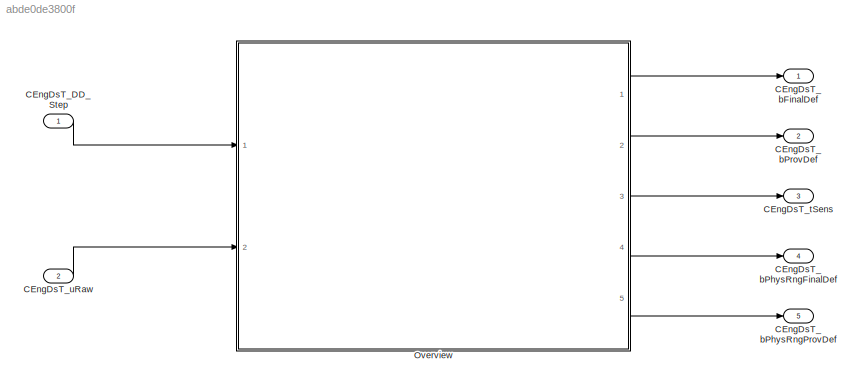
MODEL slx_abde0de3800f
KIND model
CONFIG AbsTol = auto
CONFIG EnableMultiTasking = off
CONFIG FixedStep = 0.001
CONFIG MaxStep = auto
CONFIG MinStep = auto
CONFIG RelTol = 1e-3
CONFIG SampleTimeConstraint = Unconstrained
CONFIG SolverName = FixedStepDiscrete
CONFIG StartTime = 0.0
CONFIG StopTime = Inf
WORKSPACE source: mxarray member
WORKSPACE CEngDsT_DD_DT = 10
BLOCK [Inport] CEngDsT_DD_Step
  OutputFunctionCall = on
BLOCK [Outport] CEngDsT_bFinalDef
  Description = Status Sensor of the coolant temperature finally defect
  OutDataTypeStr = boolean
  OutMax = 1
  OutMin = 0
  PortDimensions = [1 1]
BLOCK [Outport] CEngDsT_bPhysRngFinalDef
  Description = Status Sensor of the CEngDsT physical Signal range check finally defect
  OutDataTypeStr = boolean
  OutMax = 1
  OutMin = 0
  Port = 4
  PortDimensions = [1 1]
BLOCK [Outport] CEngDsT_bPhysRngProvDef
  Description = Status Sensor of the CEngDsT physical Signal range check temporary defect
  OutDataTypeStr = boolean
  OutMax = 1
  OutMin = 0
  Port = 5
  PortDimensions = [1 1]
BLOCK [Outport] CEngDsT_bProvDef
  Description = Status Sensor of the coolant temperature temporary defect
  OutDataTypeStr = boolean
  OutMax = 1
  OutMin = 0
  Port = 2
  PortDimensions = [1 1]
BLOCK [Outport] CEngDsT_tSens
  Description = Sensed engine coolant temperature
  OutDataTypeStr = Temp_C
  OutMax = 200
  OutMin = -200
  Port = 3
  PortDimensions = [1 1]
  Unit = deg
BLOCK [Inport] CEngDsT_uRaw
  Description = Raw ADC value of downstream engine coolant temperature sensor signal
  OutDataTypeStr = Volt_mV2
  OutMax = 5000
  OutMin = 0
  Port = 2
  PortDimensions = [1 1]
  Unit = mv
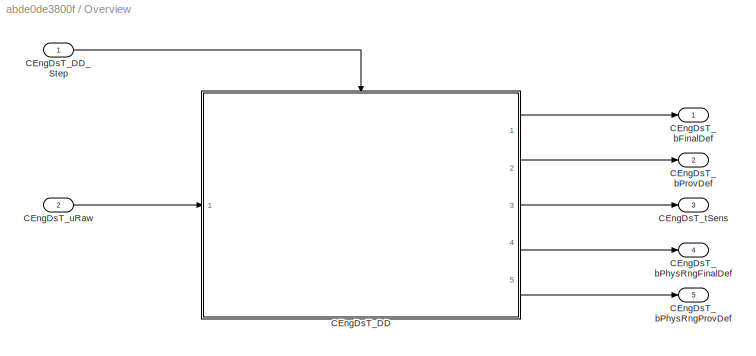
BLOCK [SubSystem] Overview
  Ports = [2, 5]
  RequestExecContextInheritance = off
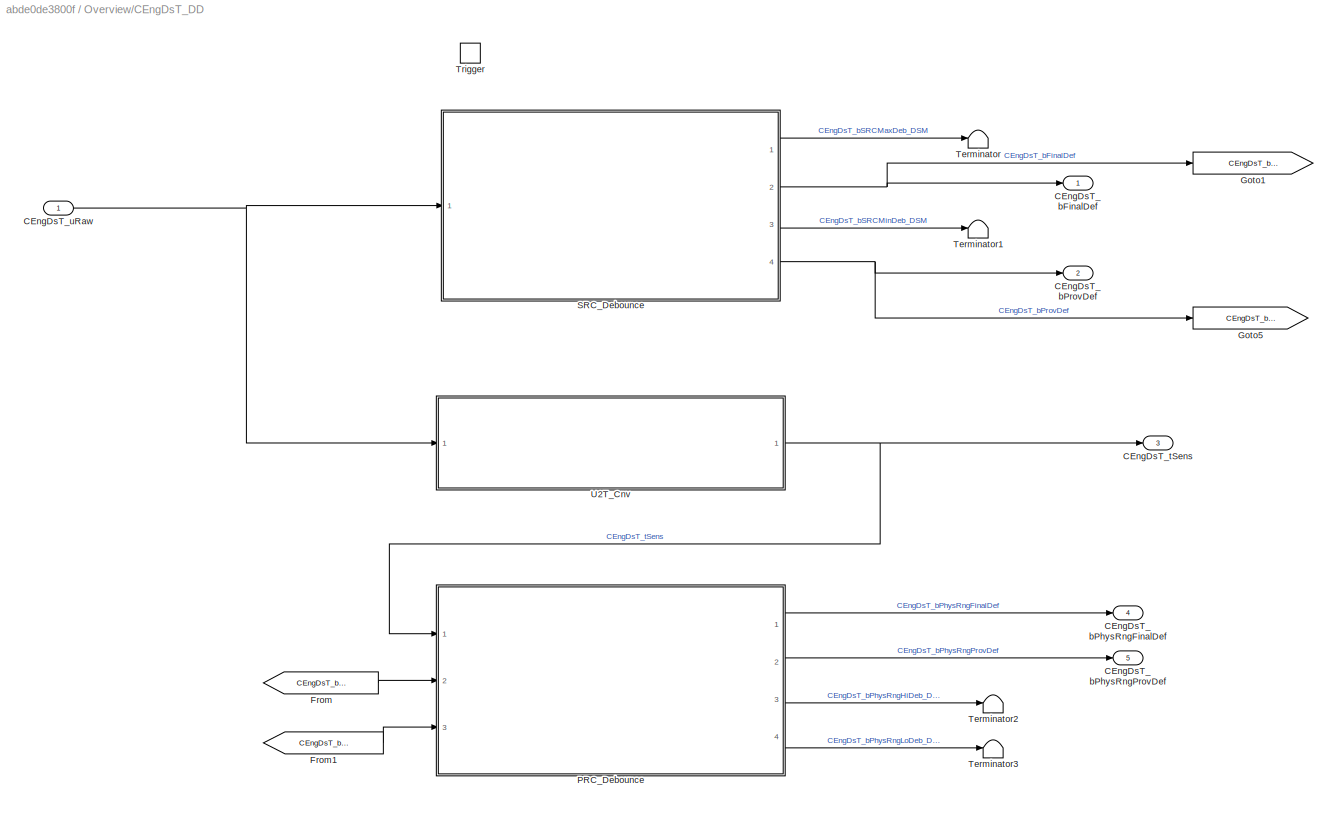
BLOCK [SubSystem] Overview/CEngDsT_DD
  Ports = [1, 5, 0, 1]
  RTWFcnName = CEngDsT_DDfun
  RTWFileName = CEngDsT_DDfun
  RequestExecContextInheritance = off
BLOCK [Outport] Overview/CEngDsT_DD/CEngDsT_bFinalDef
  VectorParamsAs1DForOutWhenUnconnected = off
BLOCK [Outport] Overview/CEngDsT_DD/CEngDsT_bPhysRngFinalDef
  Port = 4
  VectorParamsAs1DForOutWhenUnconnected = off
BLOCK [Outport] Overview/CEngDsT_DD/CEngDsT_bPhysRngProvDef
  Port = 5
  VectorParamsAs1DForOutWhenUnconnected = off
BLOCK [Outport] Overview/CEngDsT_DD/CEngDsT_bProvDef
  Port = 2
  VectorParamsAs1DForOutWhenUnconnected = off
BLOCK [Outport] Overview/CEngDsT_DD/CEngDsT_tSens
  Port = 3
  Tag = deg
  VectorParamsAs1DForOutWhenUnconnected = off
BLOCK [Inport] Overview/CEngDsT_DD/CEngDsT_uRaw
  Tag = mv
BLOCK [From] Overview/CEngDsT_DD/From
  GotoTag = CEngDsT_bProvDef
BLOCK [From] Overview/CEngDsT_DD/From1
  GotoTag = CEngDsT_bFinalDef
BLOCK [Goto] Overview/CEngDsT_DD/Goto1
  GotoTag = CEngDsT_bFinalDef
BLOCK [Goto] Overview/CEngDsT_DD/Goto5
  GotoTag = CEngDsT_bProvDef
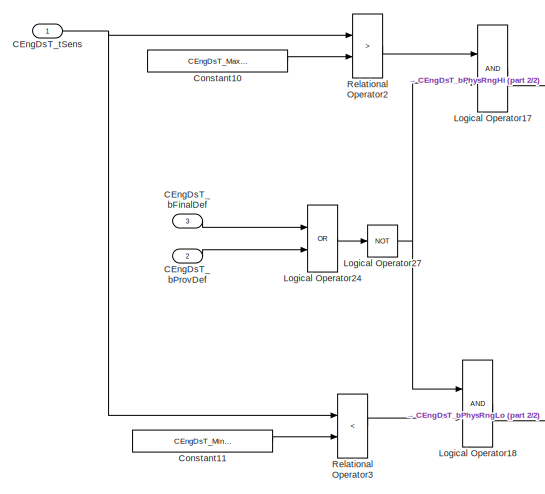
[diagram: Overview/CEngDsT_DD/PRC_Debounce - part 1/2, middle left region]
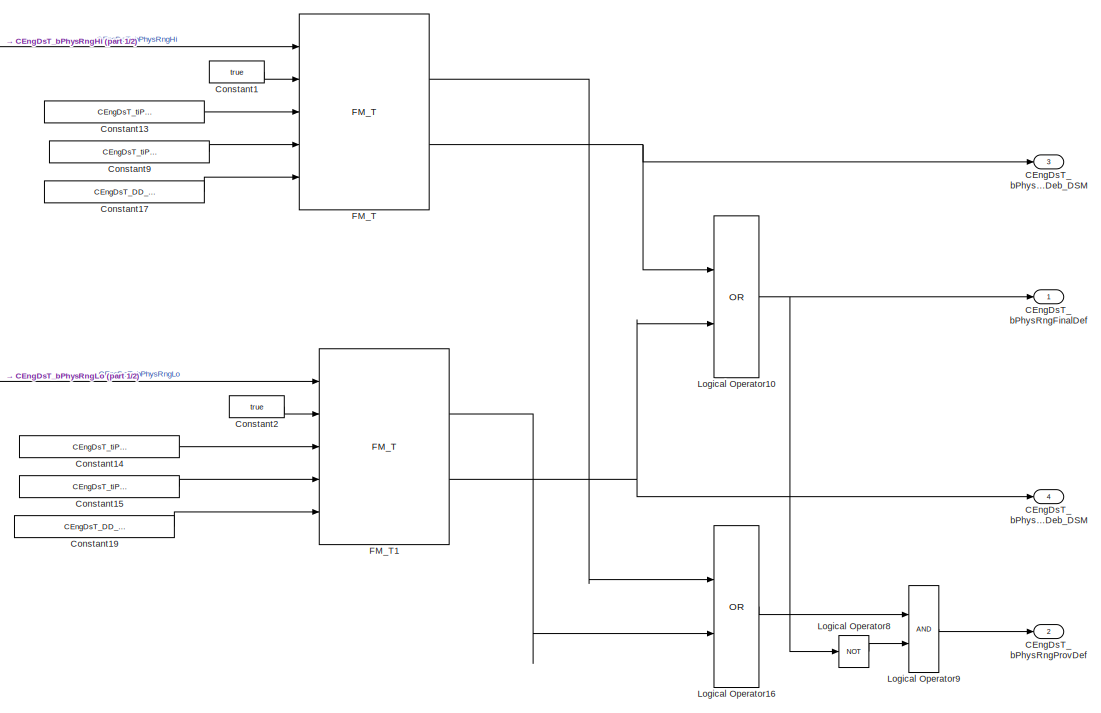
[diagram: Overview/CEngDsT_DD/PRC_Debounce - part 2/2, center side, full height]
BLOCK [SubSystem] Overview/CEngDsT_DD/PRC_Debounce
  Ports = [3, 4]
  RequestExecContextInheritance = off
BLOCK [Inport] Overview/CEngDsT_DD/PRC_Debounce/CEngDsT_bFinalDef
  Port = 3
BLOCK [Outport] Overview/CEngDsT_DD/PRC_Debounce/CEngDsT_bPhysRngFinalDef
  Tag = -
  VectorParamsAs1DForOutWhenUnconnected = off
BLOCK [Outport] Overview/CEngDsT_DD/PRC_Debounce/CEngDsT_bPhysRngHiDeb_DSM
  Port = 3
  Tag = -
  VectorParamsAs1DForOutWhenUnconnected = off
BLOCK [Outport] Overview/CEngDsT_DD/PRC_Debounce/CEngDsT_bPhysRngLoDeb_DSM
  Port = 4
  Tag = -
  VectorParamsAs1DForOutWhenUnconnected = off
BLOCK [Outport] Overview/CEngDsT_DD/PRC_Debounce/CEngDsT_bPhysRngProvDef
  Port = 2
  Tag = -
  VectorParamsAs1DForOutWhenUnconnected = off
BLOCK [Inport] Overview/CEngDsT_DD/PRC_Debounce/CEngDsT_bProvDef
  Port = 2
BLOCK [Inport] Overview/CEngDsT_DD/PRC_Debounce/CEngDsT_tSens
BLOCK [Constant] Overview/CEngDsT_DD/PRC_Debounce/Constant1
  OutDataTypeStr = boolean
  Value = true
BLOCK [Constant] Overview/CEngDsT_DD/PRC_Debounce/Constant10
  Value = CEngDsT_MaxCoolTemp
BLOCK [Constant] Overview/CEngDsT_DD/PRC_Debounce/Constant11
  Value = CEngDsT_MinCoolTemp
BLOCK [Constant] Overview/CEngDsT_DD/PRC_Debounce/Constant13
  Value = CEngDsT_tiPhysRngHiDefDeb_C
BLOCK [Constant] Overview/CEngDsT_DD/PRC_Debounce/Constant14
  Value = CEngDsT_tiPhysRngLoDefDeb_C
BLOCK [Constant] Overview/CEngDsT_DD/PRC_Debounce/Constant15
  Value = CEngDsT_tiPhysRngLoOKDeb_C
BLOCK [Constant] Overview/CEngDsT_DD/PRC_Debounce/Constant17
  OutDataTypeStr = Inherit: Inherit via back propagation
  Value = CEngDsT_DD_DT
BLOCK [Constant] Overview/CEngDsT_DD/PRC_Debounce/Constant19
  OutDataTypeStr = Inherit: Inherit via back propagation
  Value = CEngDsT_DD_DT
BLOCK [Constant] Overview/CEngDsT_DD/PRC_Debounce/Constant2
  OutDataTypeStr = boolean
  Value = true
BLOCK [Constant] Overview/CEngDsT_DD/PRC_Debounce/Constant9
  Value = CEngDsT_tiPhysRngHiOKDeb_C
BLOCK [Reference] Overview/CEngDsT_DD/PRC_Debounce/FM_T  REF=sllib/Fault Manager/FM_T  (lib defined in slx_2b0aa6d284ff)
  AttributesFormatString = %<Fault_ID>
  Ports = [5, 2]
  SourceBlock = sllib/Fault Manager/FM_T
  SourceProductName = sllib
  SourceType = FM_T
BLOCK [Reference] Overview/CEngDsT_DD/PRC_Debounce/FM_T1  REF=sllib/Fault Manager/FM_T  (lib defined in slx_2b0aa6d284ff)
  AttributesFormatString = %<Fault_ID>
  Ports = [5, 2]
  SourceBlock = sllib/Fault Manager/FM_T
  SourceProductName = sllib
  SourceType = FM_T
BLOCK [Logic] Overview/CEngDsT_DD/PRC_Debounce/Logical Operator10
  AllPortsSameDT = off
  Operator = OR
  OutDataTypeStr = boolean
  Ports = [2, 1]
BLOCK [Logic] Overview/CEngDsT_DD/PRC_Debounce/Logical Operator16
  AllPortsSameDT = off
  Operator = OR
  OutDataTypeStr = boolean
  Ports = [2, 1]
BLOCK [Logic] Overview/CEngDsT_DD/PRC_Debounce/Logical Operator17
  AllPortsSameDT = off
  OutDataTypeStr = boolean
  Ports = [2, 1]
BLOCK [Logic] Overview/CEngDsT_DD/PRC_Debounce/Logical Operator18
  AllPortsSameDT = off
  OutDataTypeStr = boolean
  Ports = [2, 1]
BLOCK [Logic] Overview/CEngDsT_DD/PRC_Debounce/Logical Operator24
  Operator = OR
  OutDataTypeStr = boolean
  Ports = [2, 1]
BLOCK [Logic] Overview/CEngDsT_DD/PRC_Debounce/Logical Operator27
  AllPortsSameDT = off
  Operator = NOT
  OutDataTypeStr = boolean
  Ports = [1, 1]
BLOCK [Logic] Overview/CEngDsT_DD/PRC_Debounce/Logical Operator8
  AllPortsSameDT = off
  Operator = NOT
  OutDataTypeStr = boolean
  Ports = [1, 1]
BLOCK [Logic] Overview/CEngDsT_DD/PRC_Debounce/Logical Operator9
  AllPortsSameDT = off
  OutDataTypeStr = boolean
  Ports = [2, 1]
BLOCK [RelationalOperator] Overview/CEngDsT_DD/PRC_Debounce/Relational Operator2
  Operator = >
  OutDataTypeStr = boolean
  Ports = [2, 1]
  RndMeth = Floor
BLOCK [RelationalOperator] Overview/CEngDsT_DD/PRC_Debounce/Relational Operator3
  Operator = <
  OutDataTypeStr = boolean
  Ports = [2, 1]
  RndMeth = Simplest
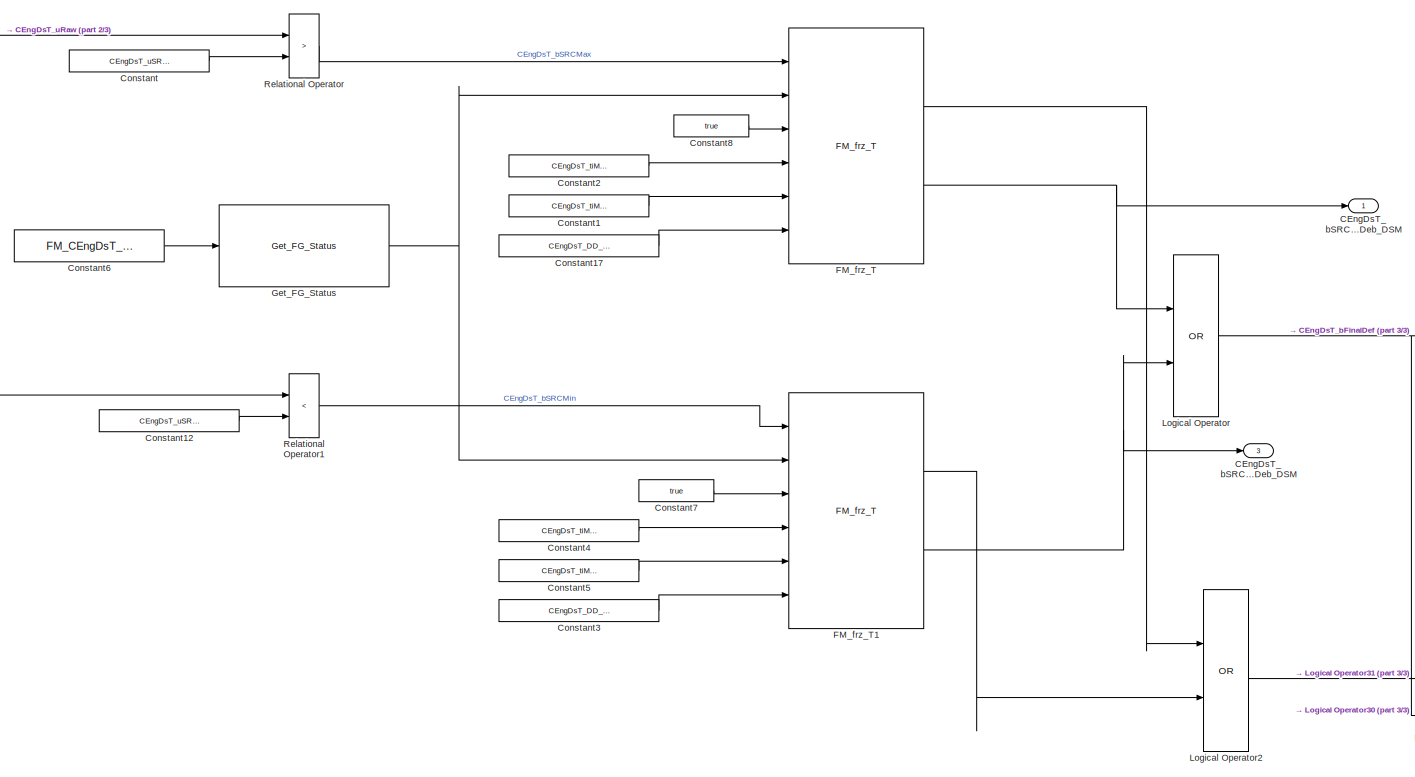
[diagram: Overview/CEngDsT_DD/SRC_Debounce - part 1/3, most of the canvas]
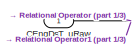
[diagram: Overview/CEngDsT_DD/SRC_Debounce - part 2/3, top left region]
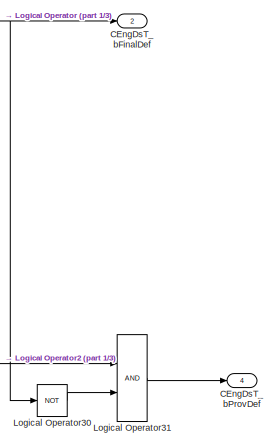
[diagram: Overview/CEngDsT_DD/SRC_Debounce - part 3/3, bottom right region]
BLOCK [SubSystem] Overview/CEngDsT_DD/SRC_Debounce
  Ports = [1, 4]
  RequestExecContextInheritance = off
BLOCK [Outport] Overview/CEngDsT_DD/SRC_Debounce/CEngDsT_bFinalDef
  Port = 2
  Tag = -
  VectorParamsAs1DForOutWhenUnconnected = off
BLOCK [Outport] Overview/CEngDsT_DD/SRC_Debounce/CEngDsT_bProvDef
  Port = 4
  Tag = -
  VectorParamsAs1DForOutWhenUnconnected = off
BLOCK [Outport] Overview/CEngDsT_DD/SRC_Debounce/CEngDsT_bSRCMaxDeb_DSM
  Tag = -
  VectorParamsAs1DForOutWhenUnconnected = off
BLOCK [Outport] Overview/CEngDsT_DD/SRC_Debounce/CEngDsT_bSRCMinDeb_DSM
  Port = 3
  Tag = -
  VectorParamsAs1DForOutWhenUnconnected = off
BLOCK [Inport] Overview/CEngDsT_DD/SRC_Debounce/CEngDsT_uRaw
  Tag = mv
BLOCK [Constant] Overview/CEngDsT_DD/SRC_Debounce/Constant
  Value = CEngDsT_uSRCMax_C
BLOCK [Constant] Overview/CEngDsT_DD/SRC_Debounce/Constant1
  Value = CEngDsT_tiMaxOKDeb_C
BLOCK [Constant] Overview/CEngDsT_DD/SRC_Debounce/Constant12
  Value = CEngDsT_uSRCMin_C
BLOCK [Constant] Overview/CEngDsT_DD/SRC_Debounce/Constant17
  OutDataTypeStr = Inherit: Inherit via back propagation
  Value = CEngDsT_DD_DT
BLOCK [Constant] Overview/CEngDsT_DD/SRC_Debounce/Constant2
  Value = CEngDsT_tiMaxDefDeb_C
BLOCK [Constant] Overview/CEngDsT_DD/SRC_Debounce/Constant3
  OutDataTypeStr = Inherit: Inherit via back propagation
  Value = CEngDsT_DD_DT
BLOCK [Constant] Overview/CEngDsT_DD/SRC_Debounce/Constant4
  Value = CEngDsT_tiMinDefDeb_C
BLOCK [Constant] Overview/CEngDsT_DD/SRC_Debounce/Constant5
  Value = CEngDsT_tiMinOKDeb_C
BLOCK [Constant] Overview/CEngDsT_DD/SRC_Debounce/Constant6
  Value = FM_CEngDsT_SRC_FG_CA
BLOCK [Constant] Overview/CEngDsT_DD/SRC_Debounce/Constant7
  OutDataTypeStr = boolean
  Value = true
BLOCK [Constant] Overview/CEngDsT_DD/SRC_Debounce/Constant8
  OutDataTypeStr = boolean
  Value = true
BLOCK [Reference] Overview/CEngDsT_DD/SRC_Debounce/FM_frz_T  REF=sllib/Fault Manager/FM_frz_T  (lib defined in slx_2b0aa6d284ff)
  AttributesFormatString = %<Fault_ID>
  Ports = [6, 2]
  SourceBlock = sllib/Fault Manager/FM_frz_T
  SourceProductName = sllib
  SourceType = FM_frz_T
BLOCK [Reference] Overview/CEngDsT_DD/SRC_Debounce/FM_frz_T1  REF=sllib/Fault Manager/FM_frz_T  (lib defined in slx_2b0aa6d284ff)
  AttributesFormatString = %<Fault_ID>
  Ports = [6, 2]
  SourceBlock = sllib/Fault Manager/FM_frz_T
  SourceProductName = sllib
  SourceType = FM_frz_T
BLOCK [Reference] Overview/CEngDsT_DD/SRC_Debounce/Get_FG_Status  REF=sllib/Fault Manager/Get_FG_Status  (lib defined in slx_2b0aa6d284ff)
  Ports = [1, 1]
  SourceBlock = sllib/Fault Manager/Get_FG_Status
  SourceProductName = sllib
  SourceType = Get_FG_Status
BLOCK [Logic] Overview/CEngDsT_DD/SRC_Debounce/Logical Operator
  AllPortsSameDT = off
  Operator = OR
  OutDataTypeStr = boolean
  Ports = [2, 1]
BLOCK [Logic] Overview/CEngDsT_DD/SRC_Debounce/Logical Operator2
  AllPortsSameDT = off
  Operator = OR
  OutDataTypeStr = boolean
  Ports = [2, 1]
BLOCK [Logic] Overview/CEngDsT_DD/SRC_Debounce/Logical Operator30
  AllPortsSameDT = off
  Operator = NOT
  OutDataTypeStr = boolean
  Ports = [1, 1]
BLOCK [Logic] Overview/CEngDsT_DD/SRC_Debounce/Logical Operator31
  AllPortsSameDT = off
  OutDataTypeStr = boolean
  Ports = [2, 1]
BLOCK [RelationalOperator] Overview/CEngDsT_DD/SRC_Debounce/Relational Operator
  Operator = >
  OutDataTypeStr = boolean
  Ports = [2, 1]
  RndMeth = Floor
BLOCK [RelationalOperator] Overview/CEngDsT_DD/SRC_Debounce/Relational Operator1
  Operator = <
  OutDataTypeStr = boolean
  Ports = [2, 1]
  RndMeth = Floor
BLOCK [Terminator] Overview/CEngDsT_DD/Terminator
BLOCK [Terminator] Overview/CEngDsT_DD/Terminator1
BLOCK [Terminator] Overview/CEngDsT_DD/Terminator2
BLOCK [Terminator] Overview/CEngDsT_DD/Terminator3
BLOCK [TriggerPort] Overview/CEngDsT_DD/Trigger
  PortDimensions = 1
  Ports = []
  StatesWhenEnabling = held
  TriggerType = function-call
  VariantControl = Variant
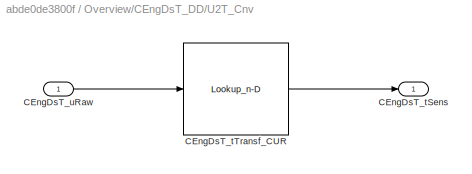
BLOCK [SubSystem] Overview/CEngDsT_DD/U2T_Cnv
  Ports = [1, 1]
  RequestExecContextInheritance = off
BLOCK [Outport] Overview/CEngDsT_DD/U2T_Cnv/CEngDsT_tSens
  Tag = deg
  VectorParamsAs1DForOutWhenUnconnected = off
BLOCK [Lookup_n-D] Overview/CEngDsT_DD/U2T_Cnv/CEngDsT_tTransf_CUR
  BeginIndexSearchUsingPreviousIndexResult = on
  BreakpointsForDimension1 = CEngDsT_tTransf_CURX
  BreakpointsForDimension1DataTypeStr = Inherit: Inherit from 'Breakpoint data'
  BreakpointsForDimension2 = CEngDsT_tTransf_CURX
  DialogController = Simulink.DDGSource
  ExtrapMethod = Clip
  IndexSearchMethod = Linear search
  InputPortMap = u0
  InputSameDT = off
  InternalRulePriority = Speed
  NumberOfTableDimensions = 1
  OutDataTypeStr = Inherit: Inherit from 'Table data'
  Ports = [1, 1]
  RemoveProtectionInput = on
  SaturateOnIntegerOverflow = on
  Table = CEngDsT_tTransf_CUR
  TableDataTypeStr = Inherit: Inherit from 'Table data'
  UseLastTableValue = on
BLOCK [Inport] Overview/CEngDsT_DD/U2T_Cnv/CEngDsT_uRaw
  Tag = mv
BLOCK [Inport] Overview/CEngDsT_DD_Step
BLOCK [Outport] Overview/CEngDsT_bFinalDef
  VectorParamsAs1DForOutWhenUnconnected = off
BLOCK [Outport] Overview/CEngDsT_bPhysRngFinalDef
  Port = 4
  VectorParamsAs1DForOutWhenUnconnected = off
BLOCK [Outport] Overview/CEngDsT_bPhysRngProvDef
  Port = 5
  VectorParamsAs1DForOutWhenUnconnected = off
BLOCK [Outport] Overview/CEngDsT_bProvDef
  Port = 2
  VectorParamsAs1DForOutWhenUnconnected = off
BLOCK [Outport] Overview/CEngDsT_tSens
  Port = 3
  VectorParamsAs1DForOutWhenUnconnected = off
BLOCK [Inport] Overview/CEngDsT_uRaw
  Port = 2
LINE CEngDsT_DD_Step:1 -> Overview:1
LINE CEngDsT_uRaw:1 -> Overview:2
NET Overview/CEngDsT_DD/CEngDsT_uRaw:1 -> Overview/CEngDsT_DD/SRC_Debounce:1, Overview/CEngDsT_DD/U2T_Cnv:1
LINE Overview/CEngDsT_DD/From1:1 -> Overview/CEngDsT_DD/PRC_Debounce:3
LINE Overview/CEngDsT_DD/From:1 -> Overview/CEngDsT_DD/PRC_Debounce:2
LINE Overview/CEngDsT_DD/PRC_Debounce/CEngDsT_bFinalDef:1 -> Overview/CEngDsT_DD/PRC_Debounce/Logical Operator24:1
LINE Overview/CEngDsT_DD/PRC_Debounce/CEngDsT_bProvDef:1 -> Overview/CEngDsT_DD/PRC_Debounce/Logical Operator24:2
NET Overview/CEngDsT_DD/PRC_Debounce/CEngDsT_tSens:1 -> Overview/CEngDsT_DD/PRC_Debounce/Relational Operator2:1, Overview/CEngDsT_DD/PRC_Debounce/Relational Operator3:1
LINE Overview/CEngDsT_DD/PRC_Debounce/Constant10:1 -> Overview/CEngDsT_DD/PRC_Debounce/Relational Operator2:2
LINE Overview/CEngDsT_DD/PRC_Debounce/Constant11:1 -> Overview/CEngDsT_DD/PRC_Debounce/Relational Operator3:2
LINE Overview/CEngDsT_DD/PRC_Debounce/Constant13:1 -> Overview/CEngDsT_DD/PRC_Debounce/FM_T:3
LINE Overview/CEngDsT_DD/PRC_Debounce/Constant14:1 -> Overview/CEngDsT_DD/PRC_Debounce/FM_T1:3
LINE Overview/CEngDsT_DD/PRC_Debounce/Constant15:1 -> Overview/CEngDsT_DD/PRC_Debounce/FM_T1:4
LINE Overview/CEngDsT_DD/PRC_Debounce/Constant17:1 -> Overview/CEngDsT_DD/PRC_Debounce/FM_T:5
LINE Overview/CEngDsT_DD/PRC_Debounce/Constant19:1 -> Overview/CEngDsT_DD/PRC_Debounce/FM_T1:5
LINE Overview/CEngDsT_DD/PRC_Debounce/Constant1:1 -> Overview/CEngDsT_DD/PRC_Debounce/FM_T:2
LINE Overview/CEngDsT_DD/PRC_Debounce/Constant2:1 -> Overview/CEngDsT_DD/PRC_Debounce/FM_T1:2
LINE Overview/CEngDsT_DD/PRC_Debounce/Constant9:1 -> Overview/CEngDsT_DD/PRC_Debounce/FM_T:4
LINE Overview/CEngDsT_DD/PRC_Debounce/FM_T1:1 -> Overview/CEngDsT_DD/PRC_Debounce/Logical Operator16:2
NET Overview/CEngDsT_DD/PRC_Debounce/FM_T1:2 -> Overview/CEngDsT_DD/PRC_Debounce/CEngDsT_bPhysRngLoDeb_DSM:1, Overview/CEngDsT_DD/PRC_Debounce/Logical Operator10:2
LINE Overview/CEngDsT_DD/PRC_Debounce/FM_T:1 -> Overview/CEngDsT_DD/PRC_Debounce/Logical Operator16:1
NET Overview/CEngDsT_DD/PRC_Debounce/FM_T:2 -> Overview/CEngDsT_DD/PRC_Debounce/CEngDsT_bPhysRngHiDeb_DSM:1, Overview/CEngDsT_DD/PRC_Debounce/Logical Operator10:1
NET Overview/CEngDsT_DD/PRC_Debounce/Logical Operator10:1 -> Overview/CEngDsT_DD/PRC_Debounce/CEngDsT_bPhysRngFinalDef:1, Overview/CEngDsT_DD/PRC_Debounce/Logical Operator8:1
LINE Overview/CEngDsT_DD/PRC_Debounce/Logical Operator16:1 -> Overview/CEngDsT_DD/PRC_Debounce/Logical Operator9:1
LINE Overview/CEngDsT_DD/PRC_Debounce/Logical Operator17:1 -> Overview/CEngDsT_DD/PRC_Debounce/FM_T:1
LINE Overview/CEngDsT_DD/PRC_Debounce/Logical Operator18:1 -> Overview/CEngDsT_DD/PRC_Debounce/FM_T1:1
LINE Overview/CEngDsT_DD/PRC_Debounce/Logical Operator24:1 -> Overview/CEngDsT_DD/PRC_Debounce/Logical Operator27:1
NET Overview/CEngDsT_DD/PRC_Debounce/Logical Operator27:1 -> Overview/CEngDsT_DD/PRC_Debounce/Logical Operator17:2, Overview/CEngDsT_DD/PRC_Debounce/Logical Operator18:1
LINE Overview/CEngDsT_DD/PRC_Debounce/Logical Operator8:1 -> Overview/CEngDsT_DD/PRC_Debounce/Logical Operator9:2
LINE Overview/CEngDsT_DD/PRC_Debounce/Logical Operator9:1 -> Overview/CEngDsT_DD/PRC_Debounce/CEngDsT_bPhysRngProvDef:1
LINE Overview/CEngDsT_DD/PRC_Debounce/Relational Operator2:1 -> Overview/CEngDsT_DD/PRC_Debounce/Logical Operator17:1
LINE Overview/CEngDsT_DD/PRC_Debounce/Relational Operator3:1 -> Overview/CEngDsT_DD/PRC_Debounce/Logical Operator18:2
LINE Overview/CEngDsT_DD/PRC_Debounce:1 -> Overview/CEngDsT_DD/CEngDsT_bPhysRngFinalDef:1
LINE Overview/CEngDsT_DD/PRC_Debounce:2 -> Overview/CEngDsT_DD/CEngDsT_bPhysRngProvDef:1
LINE Overview/CEngDsT_DD/PRC_Debounce:3 -> Overview/CEngDsT_DD/Terminator2:1
LINE Overview/CEngDsT_DD/PRC_Debounce:4 -> Overview/CEngDsT_DD/Terminator3:1
NET Overview/CEngDsT_DD/SRC_Debounce/CEngDsT_uRaw:1 -> Overview/CEngDsT_DD/SRC_Debounce/Relational Operator1:1, Overview/CEngDsT_DD/SRC_Debounce/Relational Operator:1
LINE Overview/CEngDsT_DD/SRC_Debounce/Constant12:1 -> Overview/CEngDsT_DD/SRC_Debounce/Relational Operator1:2
LINE Overview/CEngDsT_DD/SRC_Debounce/Constant17:1 -> Overview/CEngDsT_DD/SRC_Debounce/FM_frz_T:6
LINE Overview/CEngDsT_DD/SRC_Debounce/Constant1:1 -> Overview/CEngDsT_DD/SRC_Debounce/FM_frz_T:5
LINE Overview/CEngDsT_DD/SRC_Debounce/Constant2:1 -> Overview/CEngDsT_DD/SRC_Debounce/FM_frz_T:4
LINE Overview/CEngDsT_DD/SRC_Debounce/Constant3:1 -> Overview/CEngDsT_DD/SRC_Debounce/FM_frz_T1:6
LINE Overview/CEngDsT_DD/SRC_Debounce/Constant4:1 -> Overview/CEngDsT_DD/SRC_Debounce/FM_frz_T1:4
LINE Overview/CEngDsT_DD/SRC_Debounce/Constant5:1 -> Overview/CEngDsT_DD/SRC_Debounce/FM_frz_T1:5
LINE Overview/CEngDsT_DD/SRC_Debounce/Constant6:1 -> Overview/CEngDsT_DD/SRC_Debounce/Get_FG_Status:1
LINE Overview/CEngDsT_DD/SRC_Debounce/Constant7:1 -> Overview/CEngDsT_DD/SRC_Debounce/FM_frz_T1:3
LINE Overview/CEngDsT_DD/SRC_Debounce/Constant8:1 -> Overview/CEngDsT_DD/SRC_Debounce/FM_frz_T:3
LINE Overview/CEngDsT_DD/SRC_Debounce/Constant:1 -> Overview/CEngDsT_DD/SRC_Debounce/Relational Operator:2
LINE Overview/CEngDsT_DD/SRC_Debounce/FM_frz_T1:1 -> Overview/CEngDsT_DD/SRC_Debounce/Logical Operator2:2
NET Overview/CEngDsT_DD/SRC_Debounce/FM_frz_T1:2 -> Overview/CEngDsT_DD/SRC_Debounce/CEngDsT_bSRCMinDeb_DSM:1, Overview/CEngDsT_DD/SRC_Debounce/Logical Operator:2
LINE Overview/CEngDsT_DD/SRC_Debounce/FM_frz_T:1 -> Overview/CEngDsT_DD/SRC_Debounce/Logical Operator2:1
NET Overview/CEngDsT_DD/SRC_Debounce/FM_frz_T:2 -> Overview/CEngDsT_DD/SRC_Debounce/CEngDsT_bSRCMaxDeb_DSM:1, Overview/CEngDsT_DD/SRC_Debounce/Logical Operator:1
NET Overview/CEngDsT_DD/SRC_Debounce/Get_FG_Status:1 -> Overview/CEngDsT_DD/SRC_Debounce/FM_frz_T1:2, Overview/CEngDsT_DD/SRC_Debounce/FM_frz_T:2
LINE Overview/CEngDsT_DD/SRC_Debounce/Logical Operator2:1 -> Overview/CEngDsT_DD/SRC_Debounce/Logical Operator31:1
LINE Overview/CEngDsT_DD/SRC_Debounce/Logical Operator30:1 -> Overview/CEngDsT_DD/SRC_Debounce/Logical Operator31:2
LINE Overview/CEngDsT_DD/SRC_Debounce/Logical Operator31:1 -> Overview/CEngDsT_DD/SRC_Debounce/CEngDsT_bProvDef:1
NET Overview/CEngDsT_DD/SRC_Debounce/Logical Operator:1 -> Overview/CEngDsT_DD/SRC_Debounce/CEngDsT_bFinalDef:1, Overview/CEngDsT_DD/SRC_Debounce/Logical Operator30:1
LINE Overview/CEngDsT_DD/SRC_Debounce/Relational Operator1:1 -> Overview/CEngDsT_DD/SRC_Debounce/FM_frz_T1:1
LINE Overview/CEngDsT_DD/SRC_Debounce/Relational Operator:1 -> Overview/CEngDsT_DD/SRC_Debounce/FM_frz_T:1
LINE Overview/CEngDsT_DD/SRC_Debounce:1 -> Overview/CEngDsT_DD/Terminator:1
NET Overview/CEngDsT_DD/SRC_Debounce:2 -> Overview/CEngDsT_DD/CEngDsT_bFinalDef:1, Overview/CEngDsT_DD/Goto1:1
LINE Overview/CEngDsT_DD/SRC_Debounce:3 -> Overview/CEngDsT_DD/Terminator1:1
NET Overview/CEngDsT_DD/SRC_Debounce:4 -> Overview/CEngDsT_DD/CEngDsT_bProvDef:1, Overview/CEngDsT_DD/Goto5:1
LINE Overview/CEngDsT_DD/U2T_Cnv/CEngDsT_tTransf_CUR:1 -> Overview/CEngDsT_DD/U2T_Cnv/CEngDsT_tSens:1
LINE Overview/CEngDsT_DD/U2T_Cnv/CEngDsT_uRaw:1 -> Overview/CEngDsT_DD/U2T_Cnv/CEngDsT_tTransf_CUR:1
NET Overview/CEngDsT_DD/U2T_Cnv:1 -> Overview/CEngDsT_DD/CEngDsT_tSens:1, Overview/CEngDsT_DD/PRC_Debounce:1
LINE Overview/CEngDsT_DD:1 -> Overview/CEngDsT_bFinalDef:1
LINE Overview/CEngDsT_DD:2 -> Overview/CEngDsT_bProvDef:1
LINE Overview/CEngDsT_DD:3 -> Overview/CEngDsT_tSens:1
LINE Overview/CEngDsT_DD:4 -> Overview/CEngDsT_bPhysRngFinalDef:1
LINE Overview/CEngDsT_DD:5 -> Overview/CEngDsT_bPhysRngProvDef:1
LINE Overview/CEngDsT_DD_Step:1 -> Overview/CEngDsT_DD:trigger
LINE Overview/CEngDsT_uRaw:1 -> Overview/CEngDsT_DD:1
LINE Overview:1 -> CEngDsT_bFinalDef:1
LINE Overview:2 -> CEngDsT_bProvDef:1
LINE Overview:3 -> CEngDsT_tSens:1
LINE Overview:4 -> CEngDsT_bPhysRngFinalDef:1
LINE Overview:5 -> CEngDsT_bPhysRngProvDef:1
note: NET lines group one-source signal fan-out (src -> all destinations, sorted); 1:1 wires keep LINE
